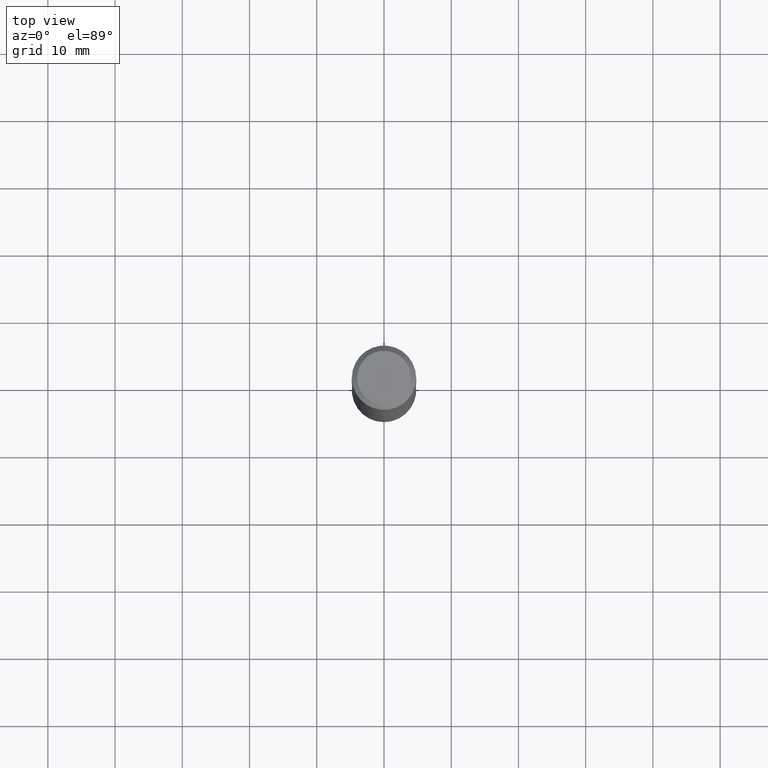
[diagram: clean part render]
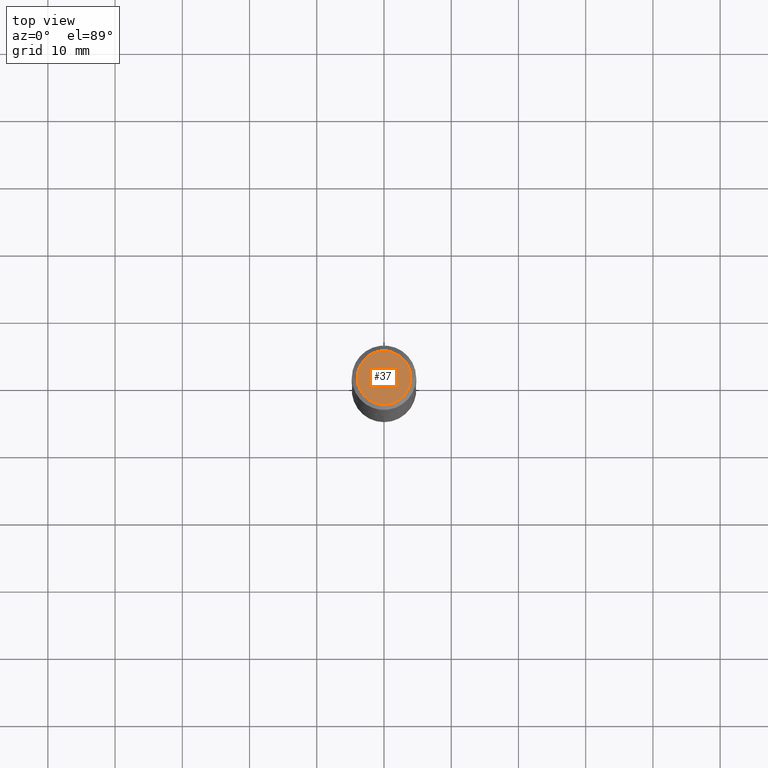
[diagram: same view with one face highlighted and labeled with its STEP entity id]
A machine part, top view. The second image highlights one B-rep face of the part: STEP entity #37.
In plain terms, the highlighted planar face has unit normal (0, -0, -1).
Its self-contained STEP definition (entity closure, byte-faithful):
#7 = AXIS2_PLACEMENT_3D ( 'NONE', #201, #301, #117 ) ;
#14 = CARTESIAN_POINT ( 'NONE',  ( -6.738379978296069609E-48, 9.620620753268311952E-34, 2.755455298081579541E-19 ) ) ;
#24 = CARTESIAN_POINT ( 'NONE',  ( 0.1572500000000000009, -1.240562987284178150E-15, 5.510910596244927326E-19 ) ) ;
#32 = ORIENTED_EDGE ( 'NONE', *, *, #327, .T. ) ;
#37 = ADVANCED_FACE ( 'NONE', ( #347 ), #79, .F. ) ;
#53 = VERTEX_POINT ( 'NONE', #190 ) ;
#74 = DIRECTION ( 'NONE',  ( 1.000000000000000000, -6.982962677686266711E-15, 4.876198312324207577E-29 ) ) ;
#79 = PLANE ( 'NONE',  #101 ) ;
#101 = AXIS2_PLACEMENT_3D ( 'NONE', #14, #156, #337 ) ;
#111 = CIRCLE ( 'NONE', #7, 0.1572500000000000009 ) ;
#117 = DIRECTION ( 'NONE',  ( 1.000000000000000000, -6.982962677686266711E-15, 4.876198312324207577E-29 ) ) ;
#139 = EDGE_LOOP ( 'NONE', ( #273, #32 ) ) ;
#141 = EDGE_CURVE ( 'NONE', #53, #383, #361, .T. ) ;
#156 = DIRECTION ( 'NONE',  ( 2.438088387897960049E-29, -3.491481338843145188E-15, -1.000000000000000000 ) ) ;
#190 = CARTESIAN_POINT ( 'NONE',  ( -0.1572500000000000009, 1.152625276985588752E-15, 5.510910596084460769E-19 ) ) ;
#201 = CARTESIAN_POINT ( 'NONE',  ( -1.347675995659213922E-47, 1.924124150653662390E-33, 5.510910596163159082E-19 ) ) ;
#245 = CARTESIAN_POINT ( 'NONE',  ( -1.347675995659213922E-47, 1.924124150653662390E-33, 5.510910596163159082E-19 ) ) ;
#251 = DIRECTION ( 'NONE',  ( -2.445468806185136597E-29, 3.491481338843145583E-15, 1.000000000000000000 ) ) ;
#273 = ORIENTED_EDGE ( 'NONE', *, *, #141, .T. ) ;
#301 = DIRECTION ( 'NONE',  ( -2.445468806185136597E-29, 3.491481338843145583E-15, 1.000000000000000000 ) ) ;
#327 = EDGE_CURVE ( 'NONE', #383, #53, #111, .T. ) ;
#337 = DIRECTION ( 'NONE',  ( -1.000000000000000000, 6.982962677686265922E-15, -4.876176775795935793E-29 ) ) ;
#344 = AXIS2_PLACEMENT_3D ( 'NONE', #245, #251, #74 ) ;
#347 = FACE_OUTER_BOUND ( 'NONE', #139, .T. ) ;
#361 = CIRCLE ( 'NONE', #344, 0.1572500000000000009 ) ;
#383 = VERTEX_POINT ( 'NONE', #24 ) ;